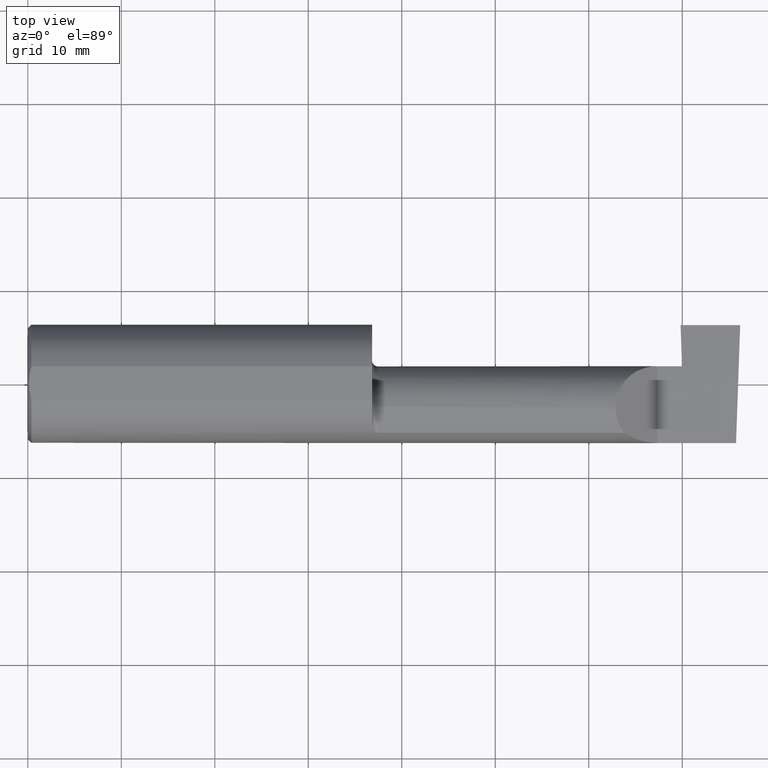
[diagram: clean part render]
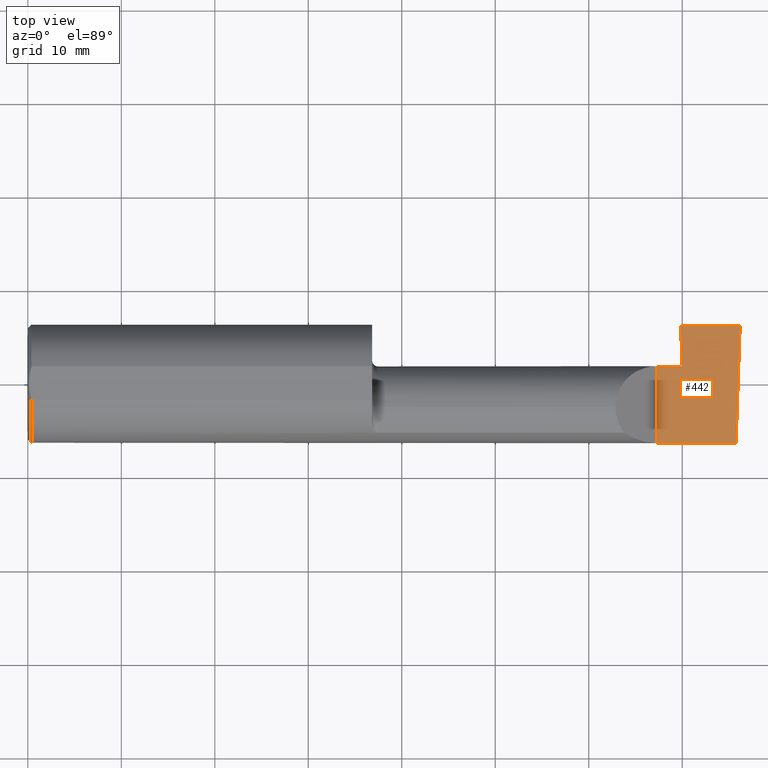
[diagram: same view with one face highlighted and labeled with its STEP entity id]
A machine part, top view. The second image highlights one B-rep face of the part: STEP entity #442.
In plain terms, the highlighted planar face has unit normal (-0, 0, -1).
Its self-contained STEP definition (entity closure, byte-faithful):
#1 = CARTESIAN_POINT ( 'NONE',  ( 2.650000000000000355, -0.2500000000000000555, 4.286263797015727350E-17 ) ) ;
#9 = DIRECTION ( 'NONE',  ( -1.000000000000000000, -0.000000000000000000, -0.000000000000000000 ) ) ;
#17 = ORIENTED_EDGE ( 'NONE', *, *, #485, .F. ) ;
#33 = LINE ( 'NONE', #171, #789 ) ;
#37 = DIRECTION ( 'NONE',  ( 0.03489949670249940794, 0.9993908270190957621, -4.452728370532699971E-18 ) ) ;
#40 = CARTESIAN_POINT ( 'NONE',  ( 2.650000000000000355, -0.2498499999999999610, 4.286263797015727350E-17 ) ) ;
#69 = LINE ( 'NONE', #140, #408 ) ;
#104 = CARTESIAN_POINT ( 'NONE',  ( 3.000000000000000444, -0.2500000000000000555, 0.000000000000000000 ) ) ;
#122 = CARTESIAN_POINT ( 'NONE',  ( 2.749000000000000110, 0.2471500000000000086, -3.306546357697639493E-19 ) ) ;
#125 = LINE ( 'NONE', #309, #576 ) ;
#140 = CARTESIAN_POINT ( 'NONE',  ( 2.766634504791320115, -0.2581443322840843435, 2.857903067387466250E-17 ) ) ;
#150 = EDGE_CURVE ( 'NONE', #694, #625, #125, .T. ) ;
#158 = CARTESIAN_POINT ( 'NONE',  ( 2.982660284539054629, -0.2493944837933358694, 2.123502703737254632E-18 ) ) ;
#160 = VERTEX_POINT ( 'NONE', #122 ) ;
#165 = ORIENTED_EDGE ( 'NONE', *, *, #786, .T. ) ;
#168 = DIRECTION ( 'NONE',  ( -1.224646799147351482E-16, 0.000000000000000000, -1.000000000000000000 ) ) ;
#171 = CARTESIAN_POINT ( 'NONE',  ( 2.725000000000000089, 0.2471500000000000086, -3.306546357697639493E-19 ) ) ;
#201 = VECTOR ( 'NONE', #9, 39.37007874015748143 ) ;
#205 = LINE ( 'NONE', #739, #201 ) ;
#215 = ORIENTED_EDGE ( 'NONE', *, *, #751, .F. ) ;
#219 = ORIENTED_EDGE ( 'NONE', *, *, #657, .F. ) ;
#221 = DIRECTION ( 'NONE',  ( 1.000000000000000000, -0.000000000000000000, -0.000000000000000000 ) ) ;
#233 = LINE ( 'NONE', #158, #783 ) ;
#271 = ORIENTED_EDGE ( 'NONE', *, *, #703, .F. ) ;
#275 = CARTESIAN_POINT ( 'NONE',  ( 2.999999999999999556, 0.2471499999999999531, -6.157329266969842815E-16 ) ) ;
#289 = EDGE_LOOP ( 'NONE', ( #271, #710, #17, #165, #498, #215, #219 ) ) ;
#304 = CARTESIAN_POINT ( 'NONE',  ( 2.982644377562602589, -0.2498499999999999610, 1.813681607540488003E-17 ) ) ;
#309 = CARTESIAN_POINT ( 'NONE',  ( 3.000000000000000444, 0.07414999999999997982, 7.390063769656993092E-33 ) ) ;
#325 = VERTEX_POINT ( 'NONE', #749 ) ;
#338 = VERTEX_POINT ( 'NONE', #275 ) ;
#341 = PLANE ( 'NONE',  #629 ) ;
#351 = DIRECTION ( 'NONE',  ( -1.000000000000000000, 0.000000000000000000, 1.224646799147351482E-16 ) ) ;
#375 = EDGE_CURVE ( 'NONE', #637, #338, #233, .T. ) ;
#376 = DIRECTION ( 'NONE',  ( 1.000000000000000000, 0.000000000000000000, 0.000000000000000000 ) ) ;
#408 = VECTOR ( 'NONE', #560, 39.37007874015748854 ) ;
#411 = VERTEX_POINT ( 'NONE', #40 ) ;
#427 = VECTOR ( 'NONE', #376, 39.37007874015748143 ) ;
#442 = ADVANCED_FACE ( 'NONE', ( #775 ), #341, .F. ) ;
#485 = EDGE_CURVE ( 'NONE', #160, #338, #33, .T. ) ;
#498 = ORIENTED_EDGE ( 'NONE', *, *, #150, .T. ) ;
#505 = VECTOR ( 'NONE', #622, 39.37007874015748143 ) ;
#550 = LINE ( 'NONE', #612, #427 ) ;
#560 = DIRECTION ( 'NONE',  ( 0.03487823687994490163, -0.9993915692020551855, -4.266149715957147469E-18 ) ) ;
#568 = LINE ( 'NONE', #1, #505 ) ;
#576 = VECTOR ( 'NONE', #610, 39.37007874015748143 ) ;
#610 = DIRECTION ( 'NONE',  ( -1.000000000000000000, -1.861621167015977137E-16, 1.224646799147351482E-16 ) ) ;
#612 = CARTESIAN_POINT ( 'NONE',  ( 1.450000000000000178, 0.07414999999999997982, 1.898202538678394254E-16 ) ) ;
#622 = DIRECTION ( 'NONE',  ( -0.000000000000000000, 1.000000000000000000, -0.000000000000000000 ) ) ;
#625 = VERTEX_POINT ( 'NONE', #778 ) ;
#629 = AXIS2_PLACEMENT_3D ( 'NONE', #104, #168, #351 ) ;
#637 = VERTEX_POINT ( 'NONE', #304 ) ;
#657 = EDGE_CURVE ( 'NONE', #411, #325, #568, .T. ) ;
#694 = VERTEX_POINT ( 'NONE', #795 ) ;
#703 = EDGE_CURVE ( 'NONE', #637, #411, #205, .T. ) ;
#710 = ORIENTED_EDGE ( 'NONE', *, *, #375, .T. ) ;
#739 = CARTESIAN_POINT ( 'NONE',  ( 4.499279347985559139E-32, -0.2498499999999999610, 3.673940397442053459E-16 ) ) ;
#749 = CARTESIAN_POINT ( 'NONE',  ( 2.650000000000000355, 0.07414999999999997982, 4.286263797015727350E-17 ) ) ;
#751 = EDGE_CURVE ( 'NONE', #325, #625, #550, .T. ) ;
#775 = FACE_OUTER_BOUND ( 'NONE', #289, .T. ) ;
#778 = CARTESIAN_POINT ( 'NONE',  ( 2.749000000000000110, 0.07414999999999996594, 1.898206034632287338E-16 ) ) ;
#783 = VECTOR ( 'NONE', #37, 39.37007874015748143 ) ;
#786 = EDGE_CURVE ( 'NONE', #160, #694, #69, .T. ) ;
#789 = VECTOR ( 'NONE', #221, 39.37007874015748143 ) ;
#795 = CARTESIAN_POINT ( 'NONE',  ( 2.755037608447156394, 0.07414999999999996594, 1.499962043633352147E-17 ) ) ;